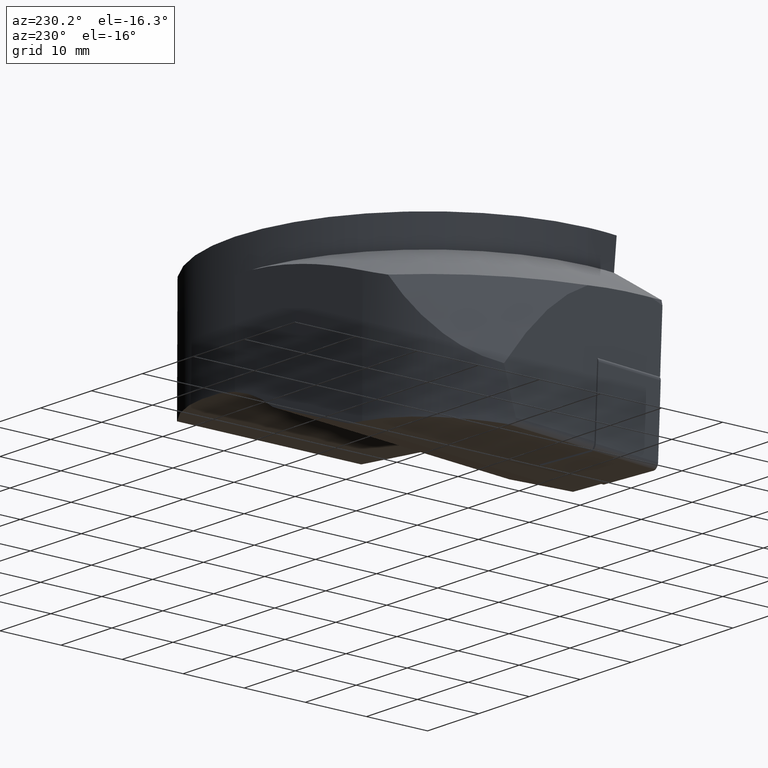
[diagram: clean part render]
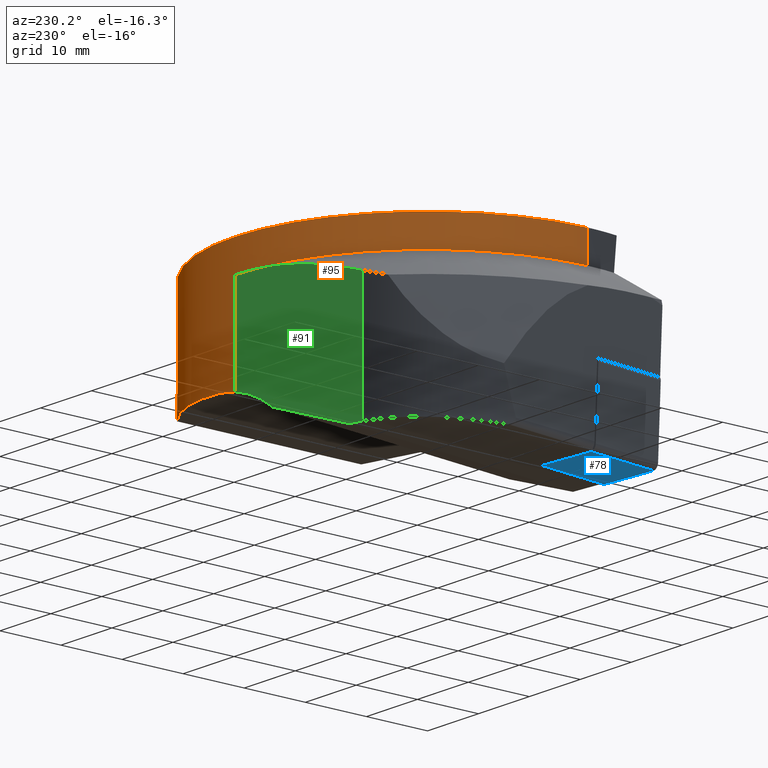
[diagram: same view with three faces highlighted in distinct colors, each labeled with its STEP entity id]
A machine part, auxiliary view with three faces highlighted in distinct colors.
Their STEP definitions:

[orange] entity #95 — the highlighted cylindrical surface (partial cylindrical patch) has radius 31.5 mm, axis along (-0, -0, 1).
#95=ADVANCED_FACE('',(#148),#149,.T.);
#148=FACE_OUTER_BOUND('',#212,.T.);
#149=CYLINDRICAL_SURFACE('',#213,31.5);
#212=EDGE_LOOP('',(#412,#413,#414,#415,#416,#417,#418,#419));
#213=AXIS2_PLACEMENT_3D('',#420,#421,#422);
#412=ORIENTED_EDGE('',*,*,#576,.F.);
#413=ORIENTED_EDGE('',*,*,#577,.F.);
#414=ORIENTED_EDGE('',*,*,#572,.F.);
#415=ORIENTED_EDGE('',*,*,#578,.F.);
#416=ORIENTED_EDGE('',*,*,#579,.T.);
#417=ORIENTED_EDGE('',*,*,#580,.T.);
#418=ORIENTED_EDGE('',*,*,#565,.T.);
#419=ORIENTED_EDGE('',*,*,#581,.T.);
#420=CARTESIAN_POINT('',(1.22124532708767E-014,4.44089209850063E-015,-4.06702151976236));
#421=DIRECTION('',(-0.0,-0.0,1.0));
#422=DIRECTION('',(0.0,-1.0,0.0));
#565=EDGE_CURVE('',#696,#694,#697,.T.);
#572=EDGE_CURVE('',#706,#707,#708,.T.);
#576=EDGE_CURVE('',#714,#715,#716,.T.);
#577=EDGE_CURVE('',#707,#714,#717,.T.);
#578=EDGE_CURVE('',#718,#706,#719,.T.);
#579=EDGE_CURVE('',#718,#720,#721,.T.);
#580=EDGE_CURVE('',#720,#696,#722,.T.);
#581=EDGE_CURVE('',#694,#715,#723,.T.);
#694=VERTEX_POINT('',#880);
#696=VERTEX_POINT('',#891);
#697=LINE('',#892,#893);
#706=VERTEX_POINT('',#940);
#707=VERTEX_POINT('',#941);
#708=LINE('',#942,#943);
#714=VERTEX_POINT('',#950);
#715=VERTEX_POINT('',#951);
#716=LINE('',#952,#953);
#717=CIRCLE('',#954,31.5);
#718=VERTEX_POINT('',#955);
#719=ELLIPSE('',#956,44.5477272147525,31.5);
#720=VERTEX_POINT('',#957);
#721=ELLIPSE('',#958,31.6203248826154,31.5);
#722=B_SPLINE_CURVE_WITH_KNOTS('',3,(#959,#960,#961,#962,#963,#964,#965,#966),.UNSPECIFIED.,.F.,.F.,(4,2,2,4),(34.5192249948421,34.6865026905277,36.5950476753527,37.7222472083368),.UNSPECIFIED.);
#723=CIRCLE('',#967,31.5);
#880=CARTESIAN_POINT('',(0.0,31.5,-5.0));
#891=CARTESIAN_POINT('',(0.0,31.5,-20.3350832689629));
#892=CARTESIAN_POINT('',(0.0,31.5,-20.3350832689629));
#893=VECTOR('',#1092,15.3350832689629);
#940=CARTESIAN_POINT('',(31.5,-3.85751E-015,-6.99999999999999));
#941=CARTESIAN_POINT('',(31.5,-3.85751E-015,0.0));
#942=CARTESIAN_POINT('',(31.5,-3.85751E-015,-6.99999999999999));
#943=VECTOR('',#1097,6.99999999999999);
#950=CARTESIAN_POINT('',(-31.5,3.85751E-015,0.0));
#951=CARTESIAN_POINT('',(-31.5,6.569822E-015,-5.0));
#952=CARTESIAN_POINT('',(-31.5,3.85751E-015,0.0));
#953=VECTOR('',#1105,5.0);
#954=AXIS2_PLACEMENT_3D('',#1106,#1107,#1108);
#955=CARTESIAN_POINT('',(20.2068212154876,24.164734146382,-18.2931787845124));
#956=AXIS2_PLACEMENT_3D('',#1109,#1110,#1111);
#957=CARTESIAN_POINT('',(3.2568851450468,31.3311777492001,-19.7761060381651));
#958=AXIS2_PLACEMENT_3D('',#1112,#1113,#1114);
#959=CARTESIAN_POINT('',(3.2568851450468,31.3311777492001,-19.7761060381651));
#960=CARTESIAN_POINT('',(3.2004619526019,31.3370429566552,-19.781042427864));
#961=CARTESIAN_POINT('',(3.1439961596822,31.3427585226833,-19.7862240671884));
#962=CARTESIAN_POINT('',(2.4428140565868,31.4118178551001,-19.8535835601211));
#963=CARTESIAN_POINT('',(1.79317133802311,31.4556032448885,-19.9477258721226));
#964=CARTESIAN_POINT('',(0.762483632227294,31.4930988420898,-20.1501772897238));
#965=CARTESIAN_POINT('',(0.380311468236002,31.5,-20.2368872701063));
#966=CARTESIAN_POINT('',(0.0,31.5,-20.3350832689629));
#967=AXIS2_PLACEMENT_3D('',#1115,#1116,#1117);
#1092=DIRECTION('',(0.0,0.0,1.0));
#1097=DIRECTION('',(0.0,0.0,1.0));
#1105=DIRECTION('',(0.0,0.0,-1.0));
#1106=CARTESIAN_POINT('',(0.0,-6.123234E-016,0.0));
#1107=DIRECTION('',(0.0,0.0,1.0));
#1108=DIRECTION('',(-1.0,0.0,0.0));
#1109=CARTESIAN_POINT('',(0.0,1.648511E-014,-38.5));
#1110=DIRECTION('',(0.707106781186548,8.59341199999998E-017,-0.707106781186548));
#1111=DIRECTION('',(-0.707106781186548,2.274257E-016,-0.707106781186548));
#1112=CARTESIAN_POINT('',(0.0,-5.012655E-015,-20.0610465667627));
#1113=DIRECTION('',(-0.087155742747658,-3.882801E-017,0.996194698091746));
#1114=DIRECTION('',(0.996194698091746,1.41112E-016,0.087155742747658));
#1115=CARTESIAN_POINT('',(0.0,1.608123E-015,-5.0));
#1116=DIRECTION('',(0.0,0.0,1.0));
#1117=DIRECTION('',(-1.0,0.0,0.0));

[blue] entity #78 — the highlighted planar face has unit normal (0.0916, 0.0895, -0.9918).
#78=ADVANCED_FACE('',(#114),#115,.T.);
#114=FACE_OUTER_BOUND('',#178,.T.);
#115=PLANE('',#179);
#178=EDGE_LOOP('',(#262,#263,#264,#265));
#179=AXIS2_PLACEMENT_3D('',#266,#267,#268);
#262=ORIENTED_EDGE('',*,*,#521,.T.);
#263=ORIENTED_EDGE('',*,*,#522,.F.);
#264=ORIENTED_EDGE('',*,*,#515,.T.);
#265=ORIENTED_EDGE('',*,*,#520,.T.);
#266=CARTESIAN_POINT('',(-32.0427200355488,7.98485406729631,-32.7875788033324));
#267=DIRECTION('',(0.091579095315045,0.0894587448704613,-0.991771345758426));
#268=DIRECTION('',(-0.995763832412983,0.0,-0.0919477572222935));
#515=EDGE_CURVE('',#611,#609,#612,.T.);
#520=EDGE_CURVE('',#609,#618,#620,.T.);
#521=EDGE_CURVE('',#618,#621,#622,.T.);
#522=EDGE_CURVE('',#611,#621,#623,.T.);
#609=VERTEX_POINT('',#757);
#611=VERTEX_POINT('',#759);
#612=LINE('',#760,#761);
#618=VERTEX_POINT('',#769);
#620=LINE('',#771,#772);
#621=VERTEX_POINT('',#773);
#622=LINE('',#774,#775);
#623=LINE('',#776,#777);
#757=CARTESIAN_POINT('',(-32.0427200355488,7.98485406729631,-32.7875788033324));
#759=CARTESIAN_POINT('',(-43.2116543141297,9.18651247760525,-33.7105153729672));
#760=CARTESIAN_POINT('',(-43.2116543141297,9.18651247760525,-33.7105153729672));
#761=VECTOR('',#1006,10.0);
#769=CARTESIAN_POINT('',(-32.9795855526299,-1.44249794718239,-33.7244443209007));
#771=CARTESIAN_POINT('',(-32.0427200355488,7.98485406729631,-32.7875788033324));
#772=VECTOR('',#1015,10.0);
#773=CARTESIAN_POINT('',(-44.1485198312108,-0.240839536873452,-34.6473808905355));
#774=CARTESIAN_POINT('',(-44.1485198312108,-0.240839536873454,-34.6473808905355));
#775=VECTOR('',#1016,10.0);
#776=CARTESIAN_POINT('',(-43.2116543141297,9.18651247760525,-33.7105153729672));
#777=VECTOR('',#1017,10.0);
#1006=DIRECTION('',(0.99092315206429,-0.106612780588336,0.081884196999153));
#1015=DIRECTION('',(-0.0984102433908721,-0.990268068747763,-0.0984102434420539));
#1016=DIRECTION('',(-0.99092315206429,0.106612780588336,-0.081884196999153));
#1017=DIRECTION('',(-0.0984102433908721,-0.990268068747763,-0.0984102434420539));

[green] entity #91 — the highlighted planar face has unit normal (0, -1, 0).
#91=ADVANCED_FACE('',(#140),#141,.F.);
#140=FACE_OUTER_BOUND('',#204,.T.);
#141=PLANE('',#205);
#204=EDGE_LOOP('',(#379,#380,#381,#382,#383,#384));
#205=AXIS2_PLACEMENT_3D('',#385,#386,#387);
#379=ORIENTED_EDGE('',*,*,#559,.T.);
#380=ORIENTED_EDGE('',*,*,#562,.T.);
#381=ORIENTED_EDGE('',*,*,#563,.F.);
#382=ORIENTED_EDGE('',*,*,#564,.F.);
#383=ORIENTED_EDGE('',*,*,#565,.F.);
#384=ORIENTED_EDGE('',*,*,#566,.F.);
#385=CARTESIAN_POINT('',(-12.5,31.5,-17.5633951330874));
#386=DIRECTION('',(0.0,-1.0,0.0));
#387=DIRECTION('',(0.0,0.0,-1.0));
#559=EDGE_CURVE('',#682,#684,#686,.T.);
#562=EDGE_CURVE('',#684,#689,#691,.T.);
#563=EDGE_CURVE('',#692,#689,#693,.T.);
#564=EDGE_CURVE('',#694,#692,#695,.T.);
#565=EDGE_CURVE('',#696,#694,#697,.T.);
#566=EDGE_CURVE('',#682,#696,#698,.T.);
#682=VERTEX_POINT('',#863);
#684=VERTEX_POINT('',#865);
#686=LINE('',#868,#869);
#689=VERTEX_POINT('',#873);
#691=LINE('',#875,#876);
#692=VERTEX_POINT('',#877);
#693=LINE('',#878,#879);
#694=VERTEX_POINT('',#880);
#695=(B_SPLINE_CURVE(2,(#882,#883,#884),.UNSPECIFIED.,.F.,.F.)B_SPLINE_CURVE_WITH_KNOTS((3,3),(29.7690639770025,56.1841265537815),.UNSPECIFIED.)RATIONAL_B_SPLINE_CURVE((1.0,1.0760277212544,1.01713168299413))BOUNDED_CURVE()REPRESENTATION_ITEM('')GEOMETRIC_REPRESENTATION_ITEM()CURVE());
#696=VERTEX_POINT('',#891);
#697=LINE('',#892,#893);
#698=CIRCLE('',#894,20.0);
#863=CARTESIAN_POINT('',(-7.40589612834773,31.5,-24.0126247812884));
#865=CARTESIAN_POINT('',(-22.4445782047687,31.5,-29.5499380467083));
#868=CARTESIAN_POINT('',(-10.7051187801614,31.5,-25.2274140336063));
#869=VECTOR('',#1085,10.0);
#873=CARTESIAN_POINT('',(-25.0,31.5,-29.7859029356916));
#875=CARTESIAN_POINT('',(-18.7855639964767,31.5,-29.2120686260675));
#876=VECTOR('',#1090,10.0);
#877=CARTESIAN_POINT('',(-25.0,31.5,-10.0316346940355));
#878=CARTESIAN_POINT('',(-25.0,31.5,-10.0316346940355));
#879=VECTOR('',#1091,20.1051555721392);
#880=CARTESIAN_POINT('',(0.0,31.5,-5.0));
#882=CARTESIAN_POINT('',(0.0,31.5,-5.0));
#883=CARTESIAN_POINT('',(-10.9809591383467,31.5,-5.0));
#884=CARTESIAN_POINT('',(-25.0,31.5,-10.0316346940355));
#891=CARTESIAN_POINT('',(0.0,31.5,-20.3350832689629));
#892=CARTESIAN_POINT('',(0.0,31.5,-20.3350832689629));
#893=VECTOR('',#1092,15.3350832689629);
#894=AXIS2_PLACEMENT_3D('',#1093,#1094,#1095);
#1085=DIRECTION('',(-0.938408963022606,-0.0,-0.34552658091504));
#1090=DIRECTION('',(-0.995763832436617,-0.0,-0.0919477569663416));
#1091=DIRECTION('',(0.0,0.0,-1.0));
#1092=DIRECTION('',(0.0,0.0,1.0));
#1093=CARTESIAN_POINT('',(5.0,31.5,-39.7));
#1094=DIRECTION('',(0.0,1.0,0.0));
#1095=DIRECTION('',(-1.0,0.0,0.0));